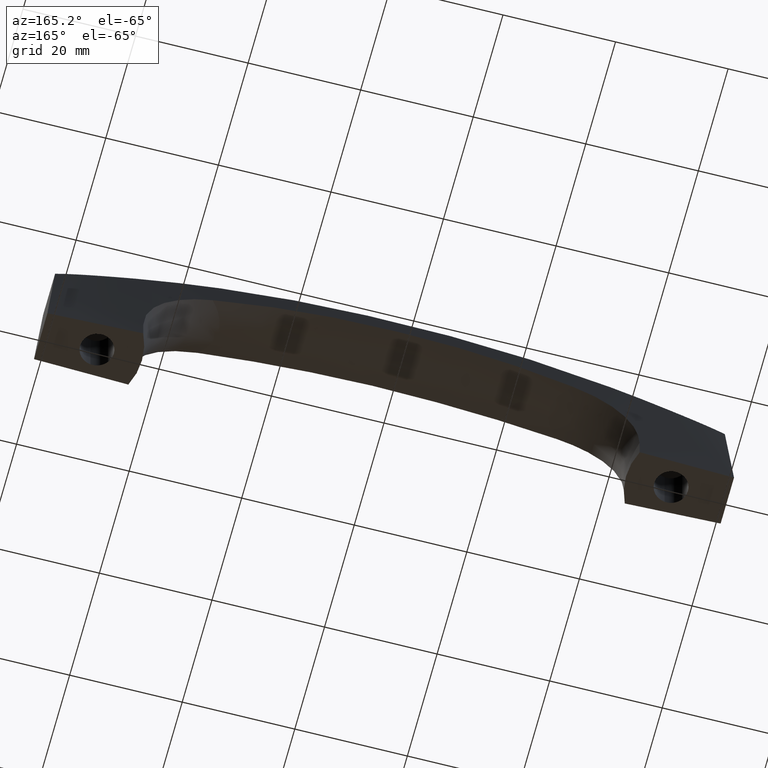
[diagram: clean part render]
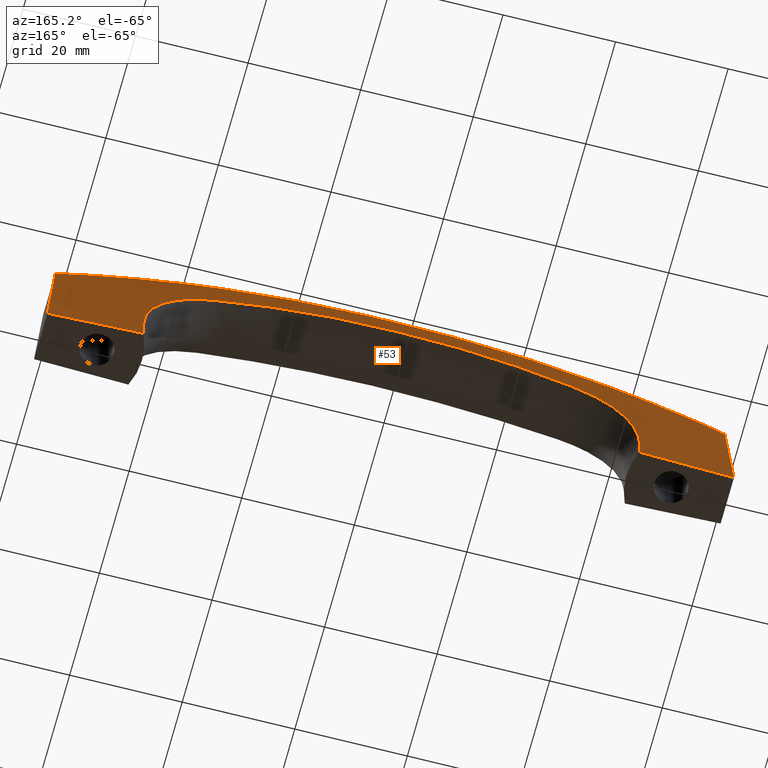
[diagram: same view with one face highlighted and labeled with its STEP entity id]
A machine part, auxiliary view. The second image highlights one B-rep face of the part: STEP entity #53.
In plain terms, the highlighted face is a freeform B-spline surface patch.
Its self-contained STEP definition (entity closure, byte-faithful):
#53=ADVANCED_FACE('',(#191),#190,.F.);
#190=( BOUNDED_SURFACE() B_SPLINE_SURFACE( 3,3,((#1069,#1070,#1071,#1072,#1073,#1074,#1075,#1076,#1077,#1078,#1079,#1080,#1081,#1082,#1083),(#1084,#1085,#1086,#1087,#1088,#1089,#1090,#1091,#1092,#1093,#1094,#1095,#1096,#1097,#1098),(#1099,#1100,#1101,#1102,#1103,#1104,#1105,#1106,#1107,#1108,#1109,#1110,#1111,#1112,#1113),(#1114,#1115,#1116,#1117,#1118,#1119,#1120,#1121,#1122,#1123,#1124,#1125,#1126,#1127,#1128),(#1129,#1130,#1131,#1132,#1133,#1134,#1135,#1136,#1137,#1138,#1139,#1140,#1141,#1142,#1143),(#1144,#1145,#1146,#1147,#1148,#1149,#1150,#1151,#1152,#1153,#1154,#1155,#1156,#1157,#1158),(#1159,#1160,#1161,#1162,#1163,#1164,#1165,#1166,#1167,#1168,#1169,#1170,#1171,#1172,#1173)), .UNSPECIFIED.,.F.,.F.,.F.) B_SPLINE_SURFACE_WITH_KNOTS((4,3,4),(4,1,1,1,1,1,1,1,1,1,1,1,4),(-3.42773276635E+01,0.00000000000E+00,3.55420467861E+01),(0.00000000000E+00,2.51424153408E+01,4.63131256070E+01,6.74838315494E+01,8.86545372176E+01,1.09825242588E+02,1.30995947939E+02,1.52166653289E+02,1.73337358660E+02,1.94508064328E+02,2.15678770270E+02,2.36849480537E+02,2.61239943865E+02), .UNSPECIFIED. ) GEOMETRIC_REPRESENTATION_ITEM() RATIONAL_B_SPLINE_SURFACE(((1.00000000000E+00,1.00000000000E+00,1.00000000000E+00,1.00000000000E+00,1.00000000000E+00,1.00000000000E+00,1.00000000000E+00,1.00000000000E+00,1.00000000000E+00,1.00000000000E+00,1.00000000000E+00,1.00000000000E+00,1.00000000000E+00,1.00000000000E+00,1.00000000000E+00),(1.00000000000E+00,1.00000000000E+00,1.00000000000E+00,1.00000000000E+00,1.00000000000E+00,1.00000000000E+00,1.00000000000E+00,1.00000000000E+00,1.00000000000E+00,1.00000000000E+00,1.00000000000E+00,1.00000000000E+00,1.00000000000E+00,1.00000000000E+00,1.00000000000E+00),(1.00000000000E+00,1.00000000000E+00,1.00000000000E+00,1.00000000000E+00,1.00000000000E+00,1.00000000000E+00,1.00000000000E+00,1.00000000000E+00,1.00000000000E+00,1.00000000000E+00,1.00000000000E+00,1.00000000000E+00,1.00000000000E+00,1.00000000000E+00,1.00000000000E+00),(1.00000000000E+00,1.00000000000E+00,1.00000000000E+00,1.00000000000E+00,1.00000000000E+00,1.00000000000E+00,1.00000000000E+00,1.00000000000E+00,1.00000000000E+00,1.00000000000E+00,1.00000000000E+00,1.00000000000E+00,1.00000000000E+00,1.00000000000E+00,1.00000000000E+00),(1.00000000000E+00,1.00000000000E+00,1.00000000000E+00,1.00000000000E+00,1.00000000000E+00,1.00000000000E+00,1.00000000000E+00,1.00000000000E+00,1.00000000000E+00,1.00000000000E+00,1.00000000000E+00,1.00000000000E+00,1.00000000000E+00,1.00000000000E+00,1.00000000000E+00),(1.00000000000E+00,1.00000000000E+00,1.00000000000E+00,1.00000000000E+00,1.00000000000E+00,1.00000000000E+00,1.00000000000E+00,1.00000000000E+00,1.00000000000E+00,1.00000000000E+00,1.00000000000E+00,1.00000000000E+00,1.00000000000E+00,1.00000000000E+00,1.00000000000E+00),(1.00000000000E+00,1.00000000000E+00,1.00000000000E+00,1.00000000000E+00,1.00000000000E+00,1.00000000000E+00,1.00000000000E+00,1.00000000000E+00,1.00000000000E+00,1.00000000000E+00,1.00000000000E+00,1.00000000000E+00,1.00000000000E+00,1.00000000000E+00,1.00000000000E+00))) REPRESENTATION_ITEM('') SURFACE() );
#191=FACE_OUTER_BOUND('',#1174,.T.);
#1069=CARTESIAN_POINT('',(6.24469243828E+01,4.98220812760E+00,-1.72456914754E+01));
#1070=CARTESIAN_POINT('',(5.82429906360E+01,5.07411354288E+00,-2.45637020359E+01));
#1071=CARTESIAN_POINT('',(5.04992114874E+01,5.24340622953E+00,-3.80437093338E+01));
#1072=CARTESIAN_POINT('',(4.00315018043E+01,5.65660845055E+00,-3.33400493727E+01));
#1073=CARTESIAN_POINT('',(2.99917544717E+01,5.01884727071E+00,-3.45263291734E+01));
#1074=CARTESIAN_POINT('',(2.00023813417E+01,5.46800251078E+00,-3.42080390566E+01));
#1075=CARTESIAN_POINT('',(9.99962053567E+00,5.50914267616E+00,-3.42949198206E+01));
#1076=CARTESIAN_POINT('',(3.65843664231E-05,5.49542678436E+00,-3.42656868758E+01));
#1077=CARTESIAN_POINT('',(-9.99886687314E+00,5.50915018643E+00,-3.42957378915E+01));
#1078=CARTESIAN_POINT('',(-2.00036691606E+01,5.46797246972E+00,-3.42047667730E+01));
#1079=CARTESIAN_POINT('',(-2.99855568586E+01,5.01895992470E+00,-3.45386002373E+01));
#1080=CARTESIAN_POINT('',(-4.00532044399E+01,5.65618787560E+00,-3.32942373964E+01));
#1081=CARTESIAN_POINT('',(-5.02948818543E+01,5.24968095803E+00,-3.81732648771E+01));
#1082=CARTESIAN_POINT('',(-5.82096022979E+01,5.07546950859E+00,-2.45426359654E+01));
#1083=CARTESIAN_POINT('',(-6.24466243828E+01,4.98220812760E+00,-1.72456914754E+01));
#1084=CARTESIAN_POINT('',(6.19647162552E+01,4.82147208507E+00,-1.14971276503E+01));
#1085=CARTESIAN_POINT('',(5.79679949089E+01,4.90955589536E+00,-1.63758013573E+01));
#1086=CARTESIAN_POINT('',(5.06059075668E+01,5.07180906455E+00,-2.53624728892E+01));
#1087=CARTESIAN_POINT('',(4.00050136727E+01,5.51595063366E+00,-2.22266995818E+01));
#1088=CARTESIAN_POINT('',(2.99988493868E+01,5.05654935911E+00,-2.30175527823E+01));
#1089=CARTESIAN_POINT('',(2.00004898102E+01,5.45785196016E+00,-2.28053593711E+01));
#1090=CARTESIAN_POINT('',(1.00000917468E+01,5.51204279104E+00,-2.28632798804E+01));
#1091=CARTESIAN_POINT('',(4.32712320857E-05,5.49397687539E+00,-2.28437912506E+01));
#1092=CARTESIAN_POINT('',(-9.99936483177E+00,5.51204970741E+00,-2.28638252610E+01));
#1093=CARTESIAN_POINT('',(-2.00016840129E+01,5.45782429466E+00,-2.28031778487E+01));
#1094=CARTESIAN_POINT('',(-2.99929994908E+01,5.05665310471E+00,-2.30257334915E+01));
#1095=CARTESIAN_POINT('',(-4.00254190562E+01,5.51556331673E+00,-2.21961582643E+01));
#1096=CARTESIAN_POINT('',(-5.04052463887E+01,5.07829643873E+00,-2.54488432514E+01));
#1097=CARTESIAN_POINT('',(-5.79340100898E+01,4.91102059680E+00,-1.63617573102E+01));
#1098=CARTESIAN_POINT('',(-6.19644162552E+01,4.82147208507E+00,-1.14971276503E+01));
#1099=CARTESIAN_POINT('',(6.14825081276E+01,4.66073604253E+00,-5.74856382514E+00));
#1100=CARTESIAN_POINT('',(5.76929991817E+01,4.74499824784E+00,-8.18790067863E+00));
#1101=CARTESIAN_POINT('',(5.07126036462E+01,4.90021189958E+00,-1.26812364446E+01));
#1102=CARTESIAN_POINT('',(3.99785255411E+01,5.37529281677E+00,-1.11133497909E+01));
#1103=CARTESIAN_POINT('',(3.00059443020E+01,5.09425144752E+00,-1.15087763911E+01));
#1104=CARTESIAN_POINT('',(1.99985982786E+01,5.44770140953E+00,-1.14026796855E+01));
#1105=CARTESIAN_POINT('',(1.00005629580E+01,5.51494290592E+00,-1.14316399402E+01));
#1106=CARTESIAN_POINT('',(4.99580977484E-05,5.49252696642E+00,-1.14218956253E+01));
#1107=CARTESIAN_POINT('',(-9.99986279040E+00,5.51494922840E+00,-1.14319126305E+01));
#1108=CARTESIAN_POINT('',(-1.99996988653E+01,5.44767611961E+00,-1.14015889243E+01));
#1109=CARTESIAN_POINT('',(-3.00004421229E+01,5.09434628472E+00,-1.15128667458E+01));
#1110=CARTESIAN_POINT('',(-3.99976336726E+01,5.37493875785E+00,-1.10980791321E+01));
#1111=CARTESIAN_POINT('',(-5.05156109230E+01,4.90691191942E+00,-1.27244216257E+01));
#1112=CARTESIAN_POINT('',(-5.76584178816E+01,4.74657168501E+00,-8.18087865512E+00));
#1113=CARTESIAN_POINT('',(-6.14822081276E+01,4.66073604253E+00,-5.74856382514E+00));
#1114=CARTESIAN_POINT('',(6.10003000000E+01,4.50000000000E+00,-8.88178400000E-13));
#1115=CARTESIAN_POINT('',(5.74180034546E+01,4.58044060032E+00,-4.86727700000E-13));
#1116=CARTESIAN_POINT('',(5.08192997255E+01,4.72861473460E+00,2.52757200000E-13));
#1117=CARTESIAN_POINT('',(3.99520374096E+01,5.23463499989E+00,-9.57002300000E-14));
#1118=CARTESIAN_POINT('',(3.00130392171E+01,5.13195353593E+00,2.56518400000E-14));
#1119=CARTESIAN_POINT('',(1.99967067471E+01,5.43755085890E+00,-6.90713700000E-15));
#1120=CARTESIAN_POINT('',(1.00010341692E+01,5.51784302080E+00,1.97671100000E-15));
#1121=CARTESIAN_POINT('',(5.66449634110E-05,5.49107705746E+00,-9.99707300000E-16));
#1122=CARTESIAN_POINT('',(-1.00003607490E+01,5.51784874939E+00,2.02211800000E-15));
#1123=CARTESIAN_POINT('',(-1.99977137176E+01,5.43752794455E+00,-7.08876400000E-15));
#1124=CARTESIAN_POINT('',(-3.00078847551E+01,5.13203946473E+00,2.63329400000E-14));
#1125=CARTESIAN_POINT('',(-3.99698482889E+01,5.23431419898E+00,-9.82430100000E-14));
#1126=CARTESIAN_POINT('',(-5.06259754574E+01,4.73552740011E+00,2.58974500000E-13));
#1127=CARTESIAN_POINT('',(-5.73828256735E+01,4.58212277322E+00,-4.88193600000E-13));
#1128=CARTESIAN_POINT('',(-6.10000000000E+01,4.50000000000E+00,-8.88178400000E-13));
#1129=CARTESIAN_POINT('',(6.05003000000E+01,4.33333333333E+00,5.96066666667E+00));
#1130=CARTESIAN_POINT('',(5.71328613019E+01,4.40981132419E+00,8.49000691818E+00));
#1131=CARTESIAN_POINT('',(5.09299325345E+01,4.55068620628E+00,1.31491317948E+01));
#1132=CARTESIAN_POINT('',(3.99245719543E+01,5.08878737846E+00,1.15233953503E+01));
#1133=CARTESIAN_POINT('',(3.00203959109E+01,5.17104670571E+00,1.19334118739E+01));
#1134=CARTESIAN_POINT('',(1.99947454244E+01,5.42702578679E+00,1.18234005536E+01));
#1135=CARTESIAN_POINT('',(1.00015227664E+01,5.52085014025E+00,1.18534293451E+01));
#1136=CARTESIAN_POINT('',(6.35785521250E-05,5.48957365168E+00,1.18433254974E+01));
#1137=CARTESIAN_POINT('',(-1.00008770807E+01,5.52085525304E+00,1.18537120967E+01));
#1138=CARTESIAN_POINT('',(-1.99956553246E+01,5.42700533567E+00,1.18222695469E+01));
#1139=CARTESIAN_POINT('',(-3.00156019955E+01,5.17112339743E+00,1.19376531490E+01));
#1140=CARTESIAN_POINT('',(-3.99410377172E+01,5.08850106267E+00,1.15075612552E+01));
#1141=CARTESIAN_POINT('',(-5.07404120751E+01,4.55781936337E+00,1.31939103651E+01));
#1142=CARTESIAN_POINT('',(-5.70970650316E+01,4.41160624479E+00,8.48272580542E+00));
#1143=CARTESIAN_POINT('',(-6.05000000000E+01,4.33333333333E+00,5.96066666667E+00));
#1144=CARTESIAN_POINT('',(6.00003000000E+01,4.16666666667E+00,1.19213333333E+01));
#1145=CARTESIAN_POINT('',(5.68477191492E+01,4.23918204805E+00,1.69800138364E+01));
#1146=CARTESIAN_POINT('',(5.10405653435E+01,4.37275767795E+00,2.62982635895E+01));
#1147=CARTESIAN_POINT('',(3.98971064990E+01,4.94293975703E+00,2.30467907006E+01));
#1148=CARTESIAN_POINT('',(3.00277526048E+01,5.21013987550E+00,2.38668237478E+01));
#1149=CARTESIAN_POINT('',(1.99927841016E+01,5.41650071468E+00,2.36468011071E+01));
#1150=CARTESIAN_POINT('',(1.00020113637E+01,5.52385725971E+00,2.37068586901E+01));
#1151=CARTESIAN_POINT('',(7.05121408400E-05,5.48807024591E+00,2.36866509948E+01));
#1152=CARTESIAN_POINT('',(-1.00013934123E+01,5.52386175668E+00,2.37074241935E+01));
#1153=CARTESIAN_POINT('',(-1.99935969317E+01,5.41648272678E+00,2.36445390938E+01));
#1154=CARTESIAN_POINT('',(-3.00233192360E+01,5.21020733013E+00,2.38753062979E+01));
#1155=CARTESIAN_POINT('',(-3.99122271455E+01,4.94268792637E+00,2.30151225103E+01));
#1156=CARTESIAN_POINT('',(-5.08548486929E+01,4.38011132664E+00,2.63878207302E+01));
#1157=CARTESIAN_POINT('',(-5.68113043897E+01,4.24108971637E+00,1.69654516108E+01));
#1158=CARTESIAN_POINT('',(-6.00000000000E+01,4.16666666667E+00,1.19213333333E+01));
#1159=CARTESIAN_POINT('',(5.95003000000E+01,4.00000000000E+00,1.78820000000E+01));
#1160=CARTESIAN_POINT('',(5.65625769965E+01,4.06855277191E+00,2.54700207546E+01));
#1161=CARTESIAN_POINT('',(5.11511981525E+01,4.19482914963E+00,3.94473953843E+01));
#1162=CARTESIAN_POINT('',(3.98696410437E+01,4.79709213560E+00,3.45701860510E+01));
#1163=CARTESIAN_POINT('',(3.00351092986E+01,5.24923304528E+00,3.58002356217E+01));
#1164=CARTESIAN_POINT('',(1.99908227789E+01,5.40597564257E+00,3.54702016607E+01));
#1165=CARTESIAN_POINT('',(1.00024999610E+01,5.52686437916E+00,3.55602880352E+01));
#1166=CARTESIAN_POINT('',(7.74457295530E-05,5.48656684013E+00,3.55299764922E+01));
#1167=CARTESIAN_POINT('',(-1.00019097439E+01,5.52686826033E+00,3.55611362902E+01));
#1168=CARTESIAN_POINT('',(-1.99915385387E+01,5.40596011789E+00,3.54668086407E+01));
#1169=CARTESIAN_POINT('',(-3.00310364764E+01,5.24929126283E+00,3.58129594469E+01));
#1170=CARTESIAN_POINT('',(-3.98834165738E+01,4.79687479006E+00,3.45226837655E+01));
#1171=CARTESIAN_POINT('',(-5.09692853106E+01,4.20240328990E+00,3.95817310952E+01));
#1172=CARTESIAN_POINT('',(-5.65255437478E+01,4.07057318795E+00,2.54481774162E+01));
#1173=CARTESIAN_POINT('',(-5.95000000000E+01,4.00000000000E+00,1.78820000000E+01));
#1174=EDGE_LOOP('',(#1257,#1258,#1259,#1260,#1261,#1262,#1263,#1264,#1265,#1266));
#1257=ORIENTED_EDGE('',*,*,#1310,.F.);
#1258=ORIENTED_EDGE('',*,*,#1290,.T.);
#1259=ORIENTED_EDGE('',*,*,#1327,.T.);
#1260=ORIENTED_EDGE('',*,*,#1324,.F.);
#1261=ORIENTED_EDGE('',*,*,#1303,.F.);
#1262=ORIENTED_EDGE('',*,*,#1295,.T.);
#1263=ORIENTED_EDGE('',*,*,#1313,.F.);
#1264=ORIENTED_EDGE('',*,*,#1318,.T.);
#1265=ORIENTED_EDGE('',*,*,#1323,.T.);
#1266=ORIENTED_EDGE('',*,*,#1321,.T.);
#1290=EDGE_CURVE('',#1333,#1348,#1355,.T.);
#1295=EDGE_CURVE('',#1390,#1383,#1391,.T.);
#1303=EDGE_CURVE('',#1390,#1432,#1445,.T.);
#1310=EDGE_CURVE('',#1333,#1493,#1494,.T.);
#1313=EDGE_CURVE('',#1513,#1383,#1514,.T.);
#1318=EDGE_CURVE('',#1513,#1540,#1547,.T.);
#1321=EDGE_CURVE('',#1553,#1493,#1567,.T.);
#1323=EDGE_CURVE('',#1540,#1553,#1579,.T.);
#1324=EDGE_CURVE('',#1432,#1585,#1586,.T.);
#1327=EDGE_CURVE('',#1348,#1585,#1605,.T.);
#1333=VERTEX_POINT('',#1641);
#1348=VERTEX_POINT('',#1653);
#1355=(BOUNDED_CURVE() B_SPLINE_CURVE(3,(#1657,#1658,#1659,#1660,#1661),.UNSPECIFIED.,.F.,.F.) B_SPLINE_CURVE_WITH_KNOTS((4,1,4),(8.58626061439E-01,9.06635781007E-01,1.00000000000E+00),.UNSPECIFIED.) CURVE() GEOMETRIC_REPRESENTATION_ITEM() RATIONAL_B_SPLINE_CURVE((1.00000000000E+00,1.00000000000E+00,1.00000000000E+00,1.00000000000E+00,1.00000000000E+00)) REPRESENTATION_ITEM('') );
#1383=VERTEX_POINT('',#1678);
#1390=VERTEX_POINT('',#1683);
#1391=(BOUNDED_CURVE() B_SPLINE_CURVE(3,(#1684,#1685,#1686,#1687,#1688),.UNSPECIFIED.,.F.,.F.) B_SPLINE_CURVE_WITH_KNOTS((4,1,4),(0.00000000000E+00,9.62426150027E-02,1.44379920066E-01),.UNSPECIFIED.) CURVE() GEOMETRIC_REPRESENTATION_ITEM() RATIONAL_B_SPLINE_CURVE((1.00000000000E+00,1.00000000000E+00,1.00000000000E+00,1.00000000000E+00,1.00000000000E+00)) REPRESENTATION_ITEM('') );
#1432=VERTEX_POINT('',#1714);
#1445=LINE('',#1721,#1722);
#1493=VERTEX_POINT('',#1754);
#1494=(BOUNDED_CURVE() B_SPLINE_CURVE(3,(#1755,#1756,#1757,#1758),.UNSPECIFIED.,.F.,.F.) B_SPLINE_CURVE_WITH_KNOTS((4,4),(0.00000000000E+00,3.86235880461E-03),.UNSPECIFIED.) CURVE() GEOMETRIC_REPRESENTATION_ITEM() RATIONAL_B_SPLINE_CURVE((1.00000000000E+00,1.00000000000E+00,1.00000000000E+00,1.00000000000E+00)) REPRESENTATION_ITEM('') );
#1513=VERTEX_POINT('',#1778);
#1514=(BOUNDED_CURVE() B_SPLINE_CURVE(3,(#1779,#1780,#1781,#1782),.UNSPECIFIED.,.F.,.F.) B_SPLINE_CURVE_WITH_KNOTS((4,4),(5.84366201799E-03,9.44934083922E-03),.UNSPECIFIED.) CURVE() GEOMETRIC_REPRESENTATION_ITEM() RATIONAL_B_SPLINE_CURVE((1.00000000000E+00,1.00000000000E+00,1.00000000000E+00,1.00000000000E+00)) REPRESENTATION_ITEM('') );
#1540=VERTEX_POINT('',#1835);
#1547=(BOUNDED_CURVE() B_SPLINE_CURVE(3,(#1847,#1848,#1849,#1850,#1851,#1852,#1853,#1854,#1855,#1856,#1857,#1858,#1859,#1860,#1861,#1862,#1863,#1864,#1865,#1866,#1867,#1868,#1869,#1870,#1871,#1872,#1873,#1874,#1875,#1876,#1877,#1878,#1879,#1880,#1881),.UNSPECIFIED.,.F.,.F.) B_SPLINE_CURVE_WITH_KNOTS((4,2,2,2,2,2,2,2,2,2,2,2,2,2,1,2,2,4),(7.04755843300E-06,1.25000000000E-01,1.87500000000E-01,2.50000000000E-01,2.81250000000E-01,3.12500000000E-01,3.75000000000E-01,5.00000000000E-01,5.62500000000E-01,5.93750000000E-01,6.25000000000E-01,7.50000000000E-01,8.12500000000E-01,8.28125000000E-01,8.43750000000E-01,8.75000000000E-01,9.37500000000E-01,9.99991775251E-01),.UNSPECIFIED.) CURVE() GEOMETRIC_REPRESENTATION_ITEM() RATIONAL_B_SPLINE_CURVE((1.00000000000E+00,1.00000000000E+00,1.00000000000E+00,1.00000000000E+00,1.00000000000E+00,1.00000000000E+00,1.00000000000E+00,1.00000000000E+00,1.00000000000E+00,1.00000000000E+00,1.00000000000E+00,1.00000000000E+00,1.00000000000E+00,1.00000000000E+00,1.00000000000E+00,1.00000000000E+00,1.00000000000E+00,1.00000000000E+00,1.00000000000E+00,1.00000000000E+00,1.00000000000E+00,1.00000000000E+00,1.00000000000E+00,1.00000000000E+00,1.00000000000E+00,1.00000000000E+00,1.00000000000E+00,1.00000000000E+00,1.00000000000E+00,1.00000000000E+00,1.00000000000E+00,1.00000000000E+00,1.00000000000E+00,1.00000000000E+00,1.00000000000E+00)) REPRESENTATION_ITEM('') );
#1553=VERTEX_POINT('',#1882);
#1567=(BOUNDED_CURVE() B_SPLINE_CURVE(3,(#1932,#1933,#1934,#1935,#1936,#1937,#1938,#1939,#1940,#1941,#1942,#1943,#1944,#1945,#1946,#1947,#1948,#1949,#1950,#1951,#1952,#1953,#1954,#1955,#1956,#1957,#1958,#1959,#1960,#1961,#1962,#1963,#1964,#1965,#1966,#1967,#1968),.UNSPECIFIED.,.F.,.F.) B_SPLINE_CURVE_WITH_KNOTS((4,2,2,2,2,2,1,2,2,2,2,2,2,2,2,2,2,2,4),(1.56820916860E-05,1.25000000000E-01,1.87500000000E-01,2.50000000000E-01,2.81250000000E-01,2.96875000000E-01,3.12500000000E-01,3.75000000000E-01,5.00000000000E-01,5.15625000000E-01,5.31250000000E-01,5.62500000000E-01,6.25000000000E-01,7.50000000000E-01,7.81250000000E-01,8.12500000000E-01,8.75000000000E-01,9.37500000000E-01,9.99968827058E-01),.UNSPECIFIED.) CURVE() GEOMETRIC_REPRESENTATION_ITEM() RATIONAL_B_SPLINE_CURVE((1.00000000000E+00,1.00000000000E+00,1.00000000000E+00,1.00000000000E+00,1.00000000000E+00,1.00000000000E+00,1.00000000000E+00,1.00000000000E+00,1.00000000000E+00,1.00000000000E+00,1.00000000000E+00,1.00000000000E+00,1.00000000000E+00,1.00000000000E+00,1.00000000000E+00,1.00000000000E+00,1.00000000000E+00,1.00000000000E+00,1.00000000000E+00,1.00000000000E+00,1.00000000000E+00,1.00000000000E+00,1.00000000000E+00,1.00000000000E+00,1.00000000000E+00,1.00000000000E+00,1.00000000000E+00,1.00000000000E+00,1.00000000000E+00,1.00000000000E+00,1.00000000000E+00,1.00000000000E+00,1.00000000000E+00,1.00000000000E+00,1.00000000000E+00,1.00000000000E+00,1.00000000000E+00)) REPRESENTATION_ITEM('') );
#1579=(BOUNDED_CURVE() B_SPLINE_CURVE(3,(#2015,#2016,#2017,#2018,#2019,#2020,#2021,#2022,#2023,#2024,#2025,#2026,#2027,#2028,#2029,#2030,#2031,#2032,#2033,#2034,#2035,#2036,#2037,#2038,#2039,#2040,#2041,#2042,#2043,#2044,#2045,#2046,#2047,#2048,#2049,#2050,#2051,#2052,#2053,#2054,#2055,#2056,#2057,#2058,#2059,#2060,#2061),.UNSPECIFIED.,.F.,.F.) B_SPLINE_CURVE_WITH_KNOTS((4,2,2,2,2,2,2,2,1,2,2,2,2,2,2,2,2,2,2,2,2,2,2,4),(8.44347334000E-06,3.12500000000E-02,6.25000000000E-02,9.37500000000E-02,1.25000000000E-01,1.87500000000E-01,2.50000000000E-01,2.81250000000E-01,3.12500000000E-01,3.43750000000E-01,3.75000000000E-01,4.37500000000E-01,4.68750000000E-01,5.00000000000E-01,6.25000000000E-01,6.56250000000E-01,6.87500000000E-01,7.50000000000E-01,8.12500000000E-01,8.43750000000E-01,8.75000000000E-01,9.37500000000E-01,9.68750000000E-01,9.99998244954E-01),.UNSPECIFIED.) CURVE() GEOMETRIC_REPRESENTATION_ITEM() RATIONAL_B_SPLINE_CURVE((1.00000000000E+00,1.00000000000E+00,1.00000000000E+00,1.00000000000E+00,1.00000000000E+00,1.00000000000E+00,1.00000000000E+00,1.00000000000E+00,1.00000000000E+00,1.00000000000E+00,1.00000000000E+00,1.00000000000E+00,1.00000000000E+00,1.00000000000E+00,1.00000000000E+00,1.00000000000E+00,1.00000000000E+00,1.00000000000E+00,1.00000000000E+00,1.00000000000E+00,1.00000000000E+00,1.00000000000E+00,1.00000000000E+00,1.00000000000E+00,1.00000000000E+00,1.00000000000E+00,1.00000000000E+00,1.00000000000E+00,1.00000000000E+00,1.00000000000E+00,1.00000000000E+00,1.00000000000E+00,1.00000000000E+00,1.00000000000E+00,1.00000000000E+00,1.00000000000E+00,1.00000000000E+00,1.00000000000E+00,1.00000000000E+00,1.00000000000E+00,1.00000000000E+00,1.00000000000E+00,1.00000000000E+00,1.00000000000E+00,1.00000000000E+00,1.00000000000E+00,1.00000000000E+00)) REPRESENTATION_ITEM('') );
#1585=VERTEX_POINT('',#2062);
#1586=(BOUNDED_CURVE() B_SPLINE_CURVE(3,(#2063,#2064,#2065,#2066,#2067,#2068,#2069,#2070,#2071,#2072,#2073,#2074,#2075,#2076,#2077,#2078,#2079,#2080,#2081,#2082,#2083,#2084,#2085,#2086,#2087,#2088,#2089,#2090,#2091,#2092,#2093,#2094,#2095,#2096,#2097,#2098,#2099,#2100,#2101,#2102,#2103,#2104,#2105,#2106,#2107,#2108,#2109,#2110,#2111,#2112,#2113,#2114,#2115,#2116,#2117,#2118,#2119,#2120,#2121,#2122,#2123,#2124,#2125,#2126,#2127,#2128,#2129,#2130,#2131,#2132,#2133,#2134,#2135,#2136,#2137,#2138,#2139,#2140,#2141,#2142,#2143,#2144,#2145,#2146,#2147,#2148,#2149,#2150),.UNSPECIFIED.,.F.,.F.) B_SPLINE_CURVE_WITH_KNOTS((4,2,2,2,2,2,2,2,2,2,2,2,2,2,2,2,2,2,2,2,2,2,2,2,2,2,2,2,2,2,2,2,2,2,2,2,2,2,2,2,2,2,2,4),(0.00000000000E+00,7.81250000000E-03,1.56250000000E-02,3.12500000000E-02,4.68750000000E-02,6.25000000000E-02,7.81250000000E-02,9.37500000000E-02,1.25000000000E-01,1.56250000000E-01,1.87500000000E-01,2.18750000000E-01,2.34375000000E-01,2.50000000000E-01,2.81250000000E-01,3.12500000000E-01,3.43750000000E-01,3.75000000000E-01,3.90625000000E-01,4.06250000000E-01,4.37500000000E-01,5.00000000000E-01,5.15625000000E-01,5.31250000000E-01,5.62500000000E-01,5.93750000000E-01,6.25000000000E-01,6.56250000000E-01,6.71875000000E-01,6.87500000000E-01,7.18750000000E-01,7.50000000000E-01,7.81250000000E-01,8.12500000000E-01,8.43750000000E-01,8.75000000000E-01,9.06250000000E-01,9.21875000000E-01,9.37500000000E-01,9.53125000000E-01,9.68750000000E-01,9.84375000000E-01,9.92187500000E-01,1.00000000000E+00),.UNSPECIFIED.) CURVE() GEOMETRIC_REPRESENTATION_ITEM() RATIONAL_B_SPLINE_CURVE((1.00000000000E+00,1.00000000000E+00,1.00000000000E+00,1.00000000000E+00,1.00000000000E+00,1.00000000000E+00,1.00000000000E+00,1.00000000000E+00,1.00000000000E+00,1.00000000000E+00,1.00000000000E+00,1.00000000000E+00,1.00000000000E+00,1.00000000000E+00,1.00000000000E+00,1.00000000000E+00,1.00000000000E+00,1.00000000000E+00,1.00000000000E+00,1.00000000000E+00,1.00000000000E+00,1.00000000000E+00,1.00000000000E+00,1.00000000000E+00,1.00000000000E+00,1.00000000000E+00,1.00000000000E+00,1.00000000000E+00,1.00000000000E+00,1.00000000000E+00,1.00000000000E+00,1.00000000000E+00,1.00000000000E+00,1.00000000000E+00,1.00000000000E+00,1.00000000000E+00,1.00000000000E+00,1.00000000000E+00,1.00000000000E+00,1.00000000000E+00,1.00000000000E+00,1.00000000000E+00,1.00000000000E+00,1.00000000000E+00,1.00000000000E+00,1.00000000000E+00,1.00000000000E+00,1.00000000000E+00,1.00000000000E+00,1.00000000000E+00,1.00000000000E+00,1.00000000000E+00,1.00000000000E+00,1.00000000000E+00,1.00000000000E+00,1.00000000000E+00,1.00000000000E+00,1.00000000000E+00,1.00000000000E+00,1.00000000000E+00,1.00000000000E+00,1.00000000000E+00,1.00000000000E+00,1.00000000000E+00,1.00000000000E+00,1.00000000000E+00,1.00000000000E+00,1.00000000000E+00,1.00000000000E+00,1.00000000000E+00,1.00000000000E+00,1.00000000000E+00,1.00000000000E+00,1.00000000000E+00,1.00000000000E+00,1.00000000000E+00,1.00000000000E+00,1.00000000000E+00,1.00000000000E+00,1.00000000000E+00,1.00000000000E+00,1.00000000000E+00,1.00000000000E+00,1.00000000000E+00,1.00000000000E+00,1.00000000000E+00,1.00000000000E+00,1.00000000000E+00)) REPRESENTATION_ITEM('') );
#1605=LINE('',#2243,#2244);
#1641=CARTESIAN_POINT('',(-4.41021223006E+01,5.02357060759E+00,0.00000000000E+00));
#1653=CARTESIAN_POINT('',(-6.10000000000E+01,4.50000000000E+00,-4.44089200000E-13));
#1657=CARTESIAN_POINT('',(-4.41021223006E+01,5.02357060759E+00,0.00000000000E+00));
#1658=CARTESIAN_POINT('',(-4.60876513746E+01,4.95379661569E+00,7.19167600000E-14));
#1659=CARTESIAN_POINT('',(-5.19056290930E+01,4.70647469326E+00,1.17471200000E-13));
#1660=CARTESIAN_POINT('',(-5.73828256735E+01,4.58212277322E+00,-4.88193600000E-13));
#1661=CARTESIAN_POINT('',(-6.10000000000E+01,4.50000000000E+00,-4.44089200000E-13));
#1678=CARTESIAN_POINT('',(4.41025482976E+01,5.02384393001E+00,0.00000000000E+00));
#1683=CARTESIAN_POINT('',(6.10003000000E+01,4.50000000000E+00,-4.44089200000E-13));
#1684=CARTESIAN_POINT('',(6.10003000000E+01,4.50000000000E+00,-4.44089200000E-13));
#1685=CARTESIAN_POINT('',(5.74180034546E+01,4.58044060032E+00,-4.86727700000E-13));
#1686=CARTESIAN_POINT('',(5.20439631829E+01,4.70111487174E+00,1.15515100000E-13));
#1687=CARTESIAN_POINT('',(4.60999607939E+01,4.95384435328E+00,6.86732700000E-14));
#1688=CARTESIAN_POINT('',(4.41025482976E+01,5.02384393001E+00,0.00000000000E+00));
#1714=CARTESIAN_POINT('',(5.95003111203E+01,4.00000370677E+00,1.78818674312E+01));
#1721=CARTESIAN_POINT('',(6.10003000000E+01,4.50000000000E+00,-4.44089200000E-13));
#1722=VECTOR('',#1723,1.79516335123E+01);
#1723=DIRECTION('',(-8.35572360964E-02,-2.78524120321E-02,9.96113663916E-01));
#1754=CARTESIAN_POINT('',(-4.40804719763E+01,4.97619902924E+00,3.86200760862E+00));
#1755=CARTESIAN_POINT('',(-4.41021223006E+01,5.02357060759E+00,0.00000000000E+00));
#1756=CARTESIAN_POINT('',(-4.40948584354E+01,5.00776800831E+00,1.28733545581E+00));
#1757=CARTESIAN_POINT('',(-4.40876418259E+01,4.99197752452E+00,2.57467132863E+00));
#1758=CARTESIAN_POINT('',(-4.40804719763E+01,4.97619902924E+00,3.86200760862E+00));
#1778=CARTESIAN_POINT('',(4.40822508638E+01,4.97958451905E+00,3.60535004168E+00));
#1779=CARTESIAN_POINT('',(4.40822508638E+01,4.97958451905E+00,3.60535004168E+00));
#1780=CARTESIAN_POINT('',(4.40889757156E+01,4.99432720036E+00,2.40356633627E+00));
#1781=CARTESIAN_POINT('',(4.40957413922E+01,5.00908030264E+00,1.20178298637E+00));
#1782=CARTESIAN_POINT('',(4.41025482976E+01,5.02384393001E+00,0.00000000000E+00));
#1835=CARTESIAN_POINT('',(3.18032806356E+01,5.16080710410E+00,1.99185917926E+01));
#1847=CARTESIAN_POINT('',(4.40822508638E+01,4.97958451905E+00,3.60535004168E+00));
#1848=CARTESIAN_POINT('',(4.40769561366E+01,4.96824700071E+00,4.52991052943E+00));
#1849=CARTESIAN_POINT('',(4.40073319775E+01,4.95940898837E+00,5.44300220172E+00));
#1850=CARTESIAN_POINT('',(4.38056959701E+01,4.95009153680E+00,6.79533772062E+00));
#1851=CARTESIAN_POINT('',(4.37221835077E+01,4.94764373369E+00,7.24322767729E+00));
#1852=CARTESIAN_POINT('',(4.35212674476E+01,4.94411363664E+00,8.13296567336E+00));
#1853=CARTESIAN_POINT('',(4.34038665222E+01,4.94303141889E+00,8.57481419022E+00));
#1854=CARTESIAN_POINT('',(4.32007493203E+01,4.94247704452E+00,9.23277062835E+00));
#1855=CARTESIAN_POINT('',(4.31285290383E+01,4.94247068253E+00,9.45128459331E+00));
#1856=CARTESIAN_POINT('',(4.29747674071E+01,4.94282061441E+00,9.88665074239E+00));
#1857=CARTESIAN_POINT('',(4.28930842679E+01,4.94317876089E+00,1.01037778313E+01));
#1858=CARTESIAN_POINT('',(4.26361881502E+01,4.94478883376E+00,1.07459729597E+01));
#1859=CARTESIAN_POINT('',(4.24484627258E+01,4.94657634767E+00,1.11639500076E+01));
#1860=CARTESIAN_POINT('',(4.18355620285E+01,4.95397255117E+00,1.23872132691E+01));
#1861=CARTESIAN_POINT('',(4.13608134082E+01,4.96163314275E+00,1.31619245458E+01));
#1862=CARTESIAN_POINT('',(4.05447534585E+01,4.97657792234E+00,1.42598951679E+01));
#1863=CARTESIAN_POINT('',(4.02553713105E+01,4.98213150671E+00,1.46151784539E+01));
#1864=CARTESIAN_POINT('',(3.97942927212E+01,4.99118361901E+00,1.51314512770E+01));
#1865=CARTESIAN_POINT('',(3.96356750854E+01,4.99433035374E+00,1.53011728472E+01));
#1866=CARTESIAN_POINT('',(3.93125243543E+01,5.00080083294E+00,1.56317093990E+01));
#1867=CARTESIAN_POINT('',(3.91477793488E+01,5.00412858159E+00,1.57928036218E+01));
#1868=CARTESIAN_POINT('',(3.83086510436E+01,5.02120960916E+00,1.65779905819E+01));
#1869=CARTESIAN_POINT('',(3.75883014522E+01,5.03628651142E+00,1.71415514673E+01));
#1870=CARTESIAN_POINT('',(3.64399136987E+01,5.06070069740E+00,1.78975295128E+01));
#1871=CARTESIAN_POINT('',(3.60457480180E+01,5.06913939255E+00,1.81345503769E+01));
#1872=CARTESIAN_POINT('',(3.55389683217E+01,5.08003496929E+00,1.84122962077E+01));
#1873=CARTESIAN_POINT('',(3.54368269006E+01,5.08223318731E+00,1.84669600196E+01));
#1874=CARTESIAN_POINT('',(3.52317912878E+01,5.08664951166E+00,1.85740994014E+01));
#1875=CARTESIAN_POINT('',(3.49229581188E+01,5.09330707359E+00,1.87316141634E+01));
#1876=CARTESIAN_POINT('',(3.46103465221E+01,5.10005923639E+00,1.88796979721E+01));
#1877=CARTESIAN_POINT('',(3.39802175054E+01,5.11367934506E+00,1.91636210372E+01));
#1878=CARTESIAN_POINT('',(3.35535999799E+01,5.12291260056E+00,1.93366009827E+01));
#1879=CARTESIAN_POINT('',(3.26878208541E+01,5.14165226127E+00,1.96510901956E+01));
#1880=CARTESIAN_POINT('',(3.22486604162E+01,5.15115804747E+00,1.97926023964E+01));
#1881=CARTESIAN_POINT('',(3.18032806356E+01,5.16080710410E+00,1.99185917926E+01));
#1882=CARTESIAN_POINT('',(-3.21029677947E+01,5.15431117959E+00,1.98333913714E+01));
#1932=CARTESIAN_POINT('',(-3.21029677947E+01,5.15431117959E+00,1.98333913714E+01));
#1933=CARTESIAN_POINT('',(-3.29722996343E+01,5.13546273417E+00,1.95849898807E+01));
#1934=CARTESIAN_POINT('',(-3.38146087874E+01,5.11716232807E+00,1.92798025890E+01));
#1935=CARTESIAN_POINT('',(-3.50360701609E+01,5.09060000502E+00,1.87336255363E+01));
#1936=CARTESIAN_POINT('',(-3.54362097021E+01,5.08189890204E+00,1.85367394027E+01));
#1937=CARTESIAN_POINT('',(-3.62216302853E+01,5.06486176446E+00,1.81117404047E+01));
#1938=CARTESIAN_POINT('',(-3.66069125125E+01,5.05652603661E+00,1.78836300159E+01));
#1939=CARTESIAN_POINT('',(-3.71728365166E+01,5.04435095530E+00,1.75162450057E+01));
#1940=CARTESIAN_POINT('',(-3.73594748858E+01,5.04034742963E+00,1.73895736329E+01));
#1941=CARTESIAN_POINT('',(-3.76362912645E+01,5.03443183584E+00,1.71929644872E+01));
#1942=CARTESIAN_POINT('',(-3.77279622546E+01,5.03247658973E+00,1.71263782196E+01));
#1943=CARTESIAN_POINT('',(-3.79093580711E+01,5.02861581144E+00,1.69916255035E+01));
#1944=CARTESIAN_POINT('',(-3.83585015397E+01,5.01907701903E+00,1.66504227249E+01));
#1945=CARTESIAN_POINT('',(-3.87858909779E+01,5.01011152057E+00,1.62875913352E+01));
#1946=CARTESIAN_POINT('',(-3.97691644169E+01,4.98975763290E+00,1.53745786974E+01));
#1947=CARTESIAN_POINT('',(-4.03681084836E+01,4.97763364078E+00,1.47096591198E+01));
#1948=CARTESIAN_POINT('',(-4.09748633601E+01,4.96634255739E+00,1.38949422850E+01));
#1949=CARTESIAN_POINT('',(-4.10413476843E+01,4.96512183627E+00,1.38034904997E+01));
#1950=CARTESIAN_POINT('',(-4.11724353261E+01,4.96275145962E+00,1.36187163337E+01));
#1951=CARTESIAN_POINT('',(-4.12369776141E+01,4.96160296394E+00,1.35254736283E+01));
#1952=CARTESIAN_POINT('',(-4.14268154464E+01,4.95828488103E+00,1.32443761272E+01));
#1953=CARTESIAN_POINT('',(-4.15486382079E+01,4.95623704565E+00,1.30547117722E+01));
#1954=CARTESIAN_POINT('',(-4.19002928117E+01,4.95059965580E+00,1.24791088830E+01));
#1955=CARTESIAN_POINT('',(-4.21163241067E+01,4.94751707327E+00,1.20865668019E+01));
#1956=CARTESIAN_POINT('',(-4.27118613154E+01,4.94036378967E+00,1.08837913886E+01));
#1957=CARTESIAN_POINT('',(-4.30390449174E+01,4.93839164462E+00,1.00485209630E+01));
#1958=CARTESIAN_POINT('',(-4.33662851020E+01,4.93950380631E+00,8.96531774785E+00));
#1959=CARTESIAN_POINT('',(-4.34273809603E+01,4.93990431637E+00,8.74749515571E+00));
#1960=CARTESIAN_POINT('',(-4.35407770418E+01,4.94104873416E+00,8.31108658312E+00));
#1961=CARTESIAN_POINT('',(-4.35931508281E+01,4.94179286039E+00,8.09225889804E+00));
#1962=CARTESIAN_POINT('',(-4.37377729315E+01,4.94452539654E+00,7.43397393155E+00));
#1963=CARTESIAN_POINT('',(-4.38175505071E+01,4.94701341440E+00,6.99271885367E+00));
#1964=CARTESIAN_POINT('',(-4.39456412036E+01,4.95325142584E+00,6.10567275592E+00));
#1965=CARTESIAN_POINT('',(-4.39939418724E+01,4.95700182472E+00,5.65987994027E+00));
#1966=CARTESIAN_POINT('',(-4.40600352706E+01,4.96570697680E+00,4.76412196350E+00));
#1967=CARTESIAN_POINT('',(-4.40778393599E+01,4.97066132952E+00,4.31415844042E+00));
#1968=CARTESIAN_POINT('',(-4.40804719763E+01,4.97619902924E+00,3.86200760862E+00));
#2015=CARTESIAN_POINT('',(3.18032806356E+01,5.16080710410E+00,1.99185917926E+01));
#2016=CARTESIAN_POINT('',(3.11546815652E+01,5.17485902712E+00,2.01019557707E+01));
#2017=CARTESIAN_POINT('',(3.05045313398E+01,5.18893062754E+00,2.02799582685E+01));
#2018=CARTESIAN_POINT('',(2.92010152101E+01,5.21753088163E+00,2.06254715557E+01));
#2019=CARTESIAN_POINT('',(2.85476423804E+01,5.23201856802E+00,2.07929616098E+01));
#2020=CARTESIAN_POINT('',(2.72377474373E+01,5.26077698279E+00,2.11170764325E+01));
#2021=CARTESIAN_POINT('',(2.65810380889E+01,5.27505131522E+00,2.12737424820E+01));
#2022=CARTESIAN_POINT('',(2.52656265529E+01,5.30288329144E+00,2.15756769925E+01));
#2023=CARTESIAN_POINT('',(2.46068786778E+01,5.31644207436E+00,2.17209605230E+01));
#2024=CARTESIAN_POINT('',(2.26274564739E+01,5.35552424457E+00,2.21395202794E+01));
#2025=CARTESIAN_POINT('',(2.13035992898E+01,5.37940338108E+00,2.23954867157E+01));
#2026=CARTESIAN_POINT('',(1.86472340807E+01,5.42137894613E+00,2.28604905246E+01));
#2027=CARTESIAN_POINT('',(1.73147355930E+01,5.43956772109E+00,2.30695719076E+01));
#2028=CARTESIAN_POINT('',(1.53094385258E+01,5.46225026714E+00,2.33476851730E+01));
#2029=CARTESIAN_POINT('',(1.46397197009E+01,5.46904082391E+00,2.34344889765E+01));
#2030=CARTESIAN_POINT('',(1.32995995442E+01,5.48095071055E+00,2.35959771733E+01));
#2031=CARTESIAN_POINT('',(1.19585704155E+01,5.49119286649E+00,2.37453847103E+01));
#2032=CARTESIAN_POINT('',(1.06157145520E+01,5.49784269276E+00,2.38705236091E+01));
#2033=CARTESIAN_POINT('',(9.27193986474E+00,5.50255704791E+00,2.39834607792E+01));
#2034=CARTESIAN_POINT('',(8.59959345889E+00,5.50395504391E+00,2.40338328349E+01));
#2035=CARTESIAN_POINT('',(6.58121247517E+00,5.50613363924E+00,2.41670986701E+01));
#2036=CARTESIAN_POINT('',(5.23383632309E+00,5.50489495385E+00,2.42321448371E+01));
#2037=CARTESIAN_POINT('',(3.21022868766E+00,5.50253502684E+00,2.42957464775E+01));
#2038=CARTESIAN_POINT('',(2.53512868237E+00,5.50166576168E+00,2.43112849720E+01));
#2039=CARTESIAN_POINT('',(1.18549736458E+00,5.50036235653E+00,2.43313063439E+01));
#2040=CARTESIAN_POINT('',(5.10824537839E-01,5.49993174203E+00,2.43357978942E+01));
#2041=CARTESIAN_POINT('',(-2.86184569166E+00,5.50032083425E+00,2.43314448803E+01));
#2042=CARTESIAN_POINT('',(-5.55775480676E+00,5.50808264136E+00,2.42419129220E+01));
#2043=CARTESIAN_POINT('',(-8.92453567335E+00,5.50332745443E+00,2.40099695512E+01));
#2044=CARTESIAN_POINT('',(-9.59785386382E+00,5.50164945911E+00,2.39575576482E+01));
#2045=CARTESIAN_POINT('',(-1.09424975707E+01,5.49630584830E+00,2.38405658418E+01));
#2046=CARTESIAN_POINT('',(-1.16140151896E+01,5.49267725021E+00,2.37759941775E+01));
#2047=CARTESIAN_POINT('',(-1.36261776897E+01,5.47913861568E+00,2.35642060314E+01));
#2048=CARTESIAN_POINT('',(-1.49644337364E+01,5.46658783558E+00,2.33989271037E+01));
#2049=CARTESIAN_POINT('',(-1.76346636002E+01,5.43538229139E+00,2.30208033796E+01));
#2050=CARTESIAN_POINT('',(-1.89666379684E+01,5.41673487198E+00,2.28079622321E+01));
#2051=CARTESIAN_POINT('',(-2.09599133745E+01,5.38454167216E+00,2.24531938958E+01));
#2052=CARTESIAN_POINT('',(-2.16236245823E+01,5.37309903227E+00,2.23289973206E+01));
#2053=CARTESIAN_POINT('',(-2.29474769207E+01,5.34897433489E+00,2.20692312803E+01));
#2054=CARTESIAN_POINT('',(-2.36078690064E+01,5.33628785944E+00,2.19336189964E+01));
#2055=CARTESIAN_POINT('',(-2.55845187132E+01,5.29673760926E+00,2.15098484132E+01));
#2056=CARTESIAN_POINT('',(-2.68962435571E+01,5.26832319419E+00,2.12047378074E+01));
#2057=CARTESIAN_POINT('',(-2.88551869707E+01,5.22520920305E+00,2.07145430949E+01));
#2058=CARTESIAN_POINT('',(-2.95067295195E+01,5.21077398022E+00,2.05457296415E+01));
#2059=CARTESIAN_POINT('',(-3.08069846513E+01,5.18235658074E+00,2.01975501665E+01));
#2060=CARTESIAN_POINT('',(-3.14556929940E+01,5.16834534708E+00,2.00181705414E+01));
#2061=CARTESIAN_POINT('',(-3.21029677947E+01,5.15431117959E+00,1.98333913714E+01));
#2062=CARTESIAN_POINT('',(-5.95000020396E+01,4.00000067987E+00,1.78819756852E+01));
#2063=CARTESIAN_POINT('',(5.95003111203E+01,4.00000370677E+00,1.78818674312E+01));
#2064=CARTESIAN_POINT('',(5.92032873135E+01,4.03226352897E+00,1.79858988431E+01));
#2065=CARTESIAN_POINT('',(5.89056495036E+01,4.05863254470E+00,1.80892703982E+01));
#2066=CARTESIAN_POINT('',(5.83095238242E+01,4.10598444461E+00,1.82945537698E+01));
#2067=CARTESIAN_POINT('',(5.80110260940E+01,4.12680062711E+00,1.83964692087E+01));
#2068=CARTESIAN_POINT('',(5.71144498322E+01,4.18442191005E+00,1.86999542505E+01));
#2069=CARTESIAN_POINT('',(5.65152953233E+01,4.21651997325E+00,1.88992599143E+01));
#2070=CARTESIAN_POINT('',(5.53145778015E+01,4.27596830244E+00,1.92916619141E+01));
#2071=CARTESIAN_POINT('',(5.47130395249E+01,4.30312404561E+00,1.94847501394E+01));
#2072=CARTESIAN_POINT('',(5.35080892938E+01,4.35547825021E+00,1.98645423245E+01));
#2073=CARTESIAN_POINT('',(5.29046247796E+01,4.38063311621E+00,2.00512636708E+01));
#2074=CARTESIAN_POINT('',(5.16957790617E+01,4.43050355978E+00,2.04183382783E+01));
#2075=CARTESIAN_POINT('',(5.10903972866E+01,4.45520396008E+00,2.05986917684E+01));
#2076=CARTESIAN_POINT('',(4.98777490414E+01,4.50499183191E+00,2.09530211621E+01));
#2077=CARTESIAN_POINT('',(4.92704842915E+01,4.53012313688E+00,2.11269966392E+01));
#2078=CARTESIAN_POINT('',(4.74458572527E+01,4.60596754344E+00,2.16393558087E+01));
#2079=CARTESIAN_POINT('',(4.62255998369E+01,4.65699549515E+00,2.19681817233E+01));
#2080=CARTESIAN_POINT('',(4.37798291078E+01,4.75656015355E+00,2.25997176427E+01));
#2081=CARTESIAN_POINT('',(4.25540178604E+01,4.80513417926E+00,2.29025139393E+01));
#2082=CARTESIAN_POINT('',(4.00964714505E+01,4.89744186901E+00,2.34822135127E+01));
#2083=CARTESIAN_POINT('',(3.88647244658E+01,4.94081557776E+00,2.37591192811E+01));
#2084=CARTESIAN_POINT('',(3.63952813312E+01,5.02200582181E+00,2.42870350803E+01));
#2085=CARTESIAN_POINT('',(3.51575906172E+01,5.05998823838E+00,2.45380439084E+01));
#2086=CARTESIAN_POINT('',(3.32966033724E+01,5.11332849112E+00,2.48951008182E+01));
#2087=CARTESIAN_POINT('',(3.26755323595E+01,5.13050270522E+00,2.50108768035E+01));
#2088=CARTESIAN_POINT('',(3.14319078387E+01,5.16373665084E+00,2.52359339168E+01));
#2089=CARTESIAN_POINT('',(3.08092502379E+01,5.17980026845E+00,2.53452324667E+01));
#2090=CARTESIAN_POINT('',(2.89399169472E+01,5.22650403062E+00,2.56632245261E+01));
#2091=CARTESIAN_POINT('',(2.76920101662E+01,5.25568016511E+00,2.58619992859E+01));
#2092=CARTESIAN_POINT('',(2.51928206803E+01,5.30933803404E+00,2.62331627395E+01));
#2093=CARTESIAN_POINT('',(2.39415377079E+01,5.33380451186E+00,2.64055514141E+01));
#2094=CARTESIAN_POINT('',(2.14355982772E+01,5.37806897043E+00,2.67239586189E+01));
#2095=CARTESIAN_POINT('',(2.01809429789E+01,5.39793497607E+00,2.68699769696E+01));
#2096=CARTESIAN_POINT('',(1.76682688761E+01,5.43371649871E+00,2.71356235037E+01));
#2097=CARTESIAN_POINT('',(1.64102481066E+01,5.44951667594E+00,2.72552520054E+01));
#2098=CARTESIAN_POINT('',(1.45206720648E+01,5.46925252124E+00,2.74148632837E+01));
#2099=CARTESIAN_POINT('',(1.38902814516E+01,5.47516880123E+00,2.74647691565E+01));
#2100=CARTESIAN_POINT('',(1.26292557735E+01,5.48550980932E+00,2.75579161728E+01));
#2101=CARTESIAN_POINT('',(1.19986430970E+01,5.48993450959E+00,2.76011571118E+01));
#2102=CARTESIAN_POINT('',(1.01065055231E+01,5.50072437835E+00,2.77208944108E+01));
#2103=CARTESIAN_POINT('',(8.84468048337E+00,5.50420935209E+00,2.77874063855E+01));
#2104=CARTESIAN_POINT('',(5.05801285273E+00,5.50716231843E+00,2.79470605904E+01));
#2105=CARTESIAN_POINT('',(2.53197966361E+00,5.50000746627E+00,2.80003384054E+01));
#2106=CARTESIAN_POINT('',(-6.27516680656E-01,5.49999814068E+00,2.80004153319E+01));
#2107=CARTESIAN_POINT('',(-1.25951372926E+00,5.50044509590E+00,2.79971033415E+01));
#2108=CARTESIAN_POINT('',(-2.52370441451E+00,5.50172694503E+00,2.79838173047E+01));
#2109=CARTESIAN_POINT('',(-3.15600299155E+00,5.50256192791E+00,2.79738407180E+01));
#2110=CARTESIAN_POINT('',(-5.05228239328E+00,5.50488143622E+00,2.79339247186E+01));
#2111=CARTESIAN_POINT('',(-6.31560053629E+00,5.50617819347E+00,2.78940068146E+01));
#2112=CARTESIAN_POINT('',(-8.84047921675E+00,5.50421820363E+00,2.77876145347E+01));
#2113=CARTESIAN_POINT('',(-1.01020383831E+01,5.50073938609E+00,2.77211402437E+01));
#2114=CARTESIAN_POINT('',(-1.26233830082E+01,5.48637709291E+00,2.75616593369E+01));
#2115=CARTESIAN_POINT('',(-1.38831709444E+01,5.47589406610E+00,2.74686526439E+01));
#2116=CARTESIAN_POINT('',(-1.64009852625E+01,5.44961992897E+00,2.72560939819E+01));
#2117=CARTESIAN_POINT('',(-1.76590116754E+01,5.43383379765E+00,2.71365420127E+01));
#2118=CARTESIAN_POINT('',(-1.95447328431E+01,5.40699507858E+00,2.69372685744E+01));
#2119=CARTESIAN_POINT('',(-2.01731941471E+01,5.39753075033E+00,2.68675067019E+01));
#2120=CARTESIAN_POINT('',(-2.14290369128E+01,5.37758968133E+00,2.67214004421E+01));
#2121=CARTESIAN_POINT('',(-2.20564163170E+01,5.36709388205E+00,2.66450578111E+01));
#2122=CARTESIAN_POINT('',(-2.39369273242E+01,5.33388323356E+00,2.64061750495E+01));
#2123=CARTESIAN_POINT('',(-2.51884311548E+01,5.30941276815E+00,2.62337812518E+01));
#2124=CARTESIAN_POINT('',(-2.76871047865E+01,5.25577467198E+00,2.58627610689E+01));
#2125=CARTESIAN_POINT('',(-2.89342749775E+01,5.22662361082E+00,2.56641346879E+01));
#2126=CARTESIAN_POINT('',(-3.14243015391E+01,5.16444229515E+00,2.52406554853E+01));
#2127=CARTESIAN_POINT('',(-3.26671568774E+01,5.13136788849E+00,2.50158026960E+01));
#2128=CARTESIAN_POINT('',(-3.51485251504E+01,5.06027083239E+00,2.45398491603E+01));
#2129=CARTESIAN_POINT('',(-3.63872828938E+01,5.02226155496E+00,2.42886955330E+01));
#2130=CARTESIAN_POINT('',(-3.88592908320E+01,4.94099530247E+00,2.37603300591E+01));
#2131=CARTESIAN_POINT('',(-4.00921548012E+01,4.89759046104E+00,2.34832067923E+01));
#2132=CARTESIAN_POINT('',(-4.25516079399E+01,4.80519966952E+00,2.29031072919E+01));
#2133=CARTESIAN_POINT('',(-4.37782096727E+01,4.75657003367E+00,2.26001284198E+01));
#2134=CARTESIAN_POINT('',(-4.62252473410E+01,4.65691433205E+00,2.19682801235E+01));
#2135=CARTESIAN_POINT('',(-4.74452605935E+01,4.60589279173E+00,2.16395183252E+01));
#2136=CARTESIAN_POINT('',(-4.92697871490E+01,4.53010906252E+00,2.11271949096E+01));
#2137=CARTESIAN_POINT('',(-4.98770662396E+01,4.50500469469E+00,2.09532183032E+01));
#2138=CARTESIAN_POINT('',(-5.10898364304E+01,4.45524674056E+00,2.05988580151E+01));
#2139=CARTESIAN_POINT('',(-5.16953257986E+01,4.43054825102E+00,2.04184747651E+01));
#2140=CARTESIAN_POINT('',(-5.29044783844E+01,4.38062246126E+00,2.00513092739E+01));
#2141=CARTESIAN_POINT('',(-5.35080414125E+01,4.35541359141E+00,1.98645571693E+01));
#2142=CARTESIAN_POINT('',(-5.47129593729E+01,4.30289828906E+00,1.94847756497E+01));
#2143=CARTESIAN_POINT('',(-5.53143327037E+01,4.27563550774E+00,1.92917404779E+01));
#2144=CARTESIAN_POINT('',(-5.65147496647E+01,4.21596228150E+00,1.88994397735E+01));
#2145=CARTESIAN_POINT('',(-5.71138026024E+01,4.18373650292E+00,1.87001707511E+01));
#2146=CARTESIAN_POINT('',(-5.80103589176E+01,4.12607361370E+00,1.83966963324E+01));
#2147=CARTESIAN_POINT('',(-5.83088723496E+01,4.10526903878E+00,1.82947769362E+01));
#2148=CARTESIAN_POINT('',(-5.89051006947E+01,4.05809143125E+00,1.80894605621E+01));
#2149=CARTESIAN_POINT('',(-5.92028233367E+01,4.03187142555E+00,1.79860607418E+01));
#2150=CARTESIAN_POINT('',(-5.95000020396E+01,4.00000067987E+00,1.78819756852E+01));
#2243=CARTESIAN_POINT('',(-6.10000000000E+01,4.50000000000E+00,-4.44089200000E-13));
#2244=VECTOR('',#2245,1.79517421886E+01);
#2245=DIRECTION('',(8.35572360963E-02,-2.78524120321E-02,9.96113663916E-01));